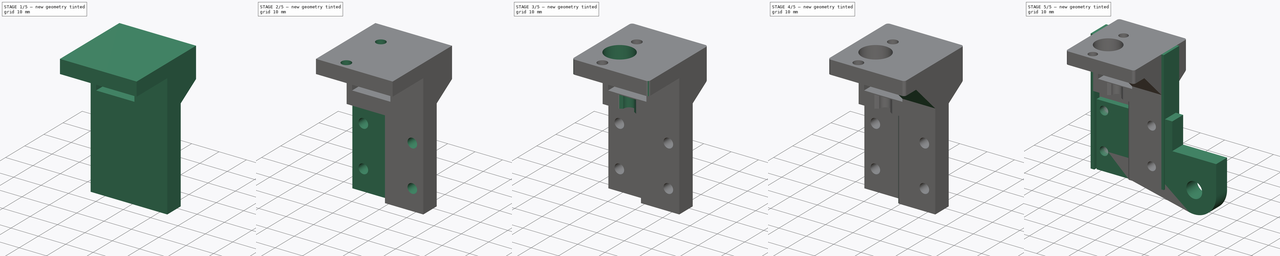
[diagram: build sequence overview — one tinted view per stage of 5, left to right]
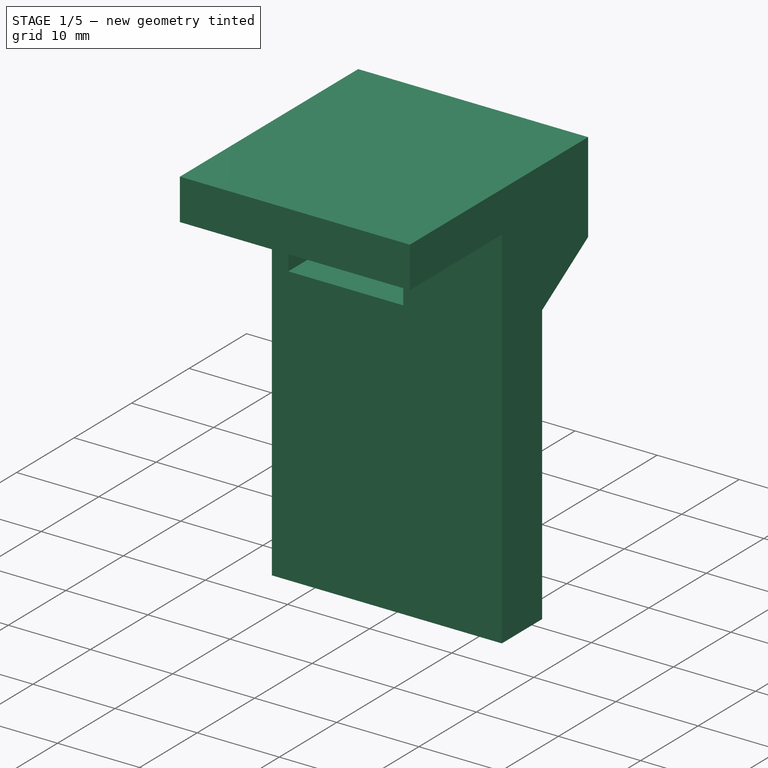
[diagram: stage 1 of 5 — iso view after this stage's code; geometry added in this stage tinted green]
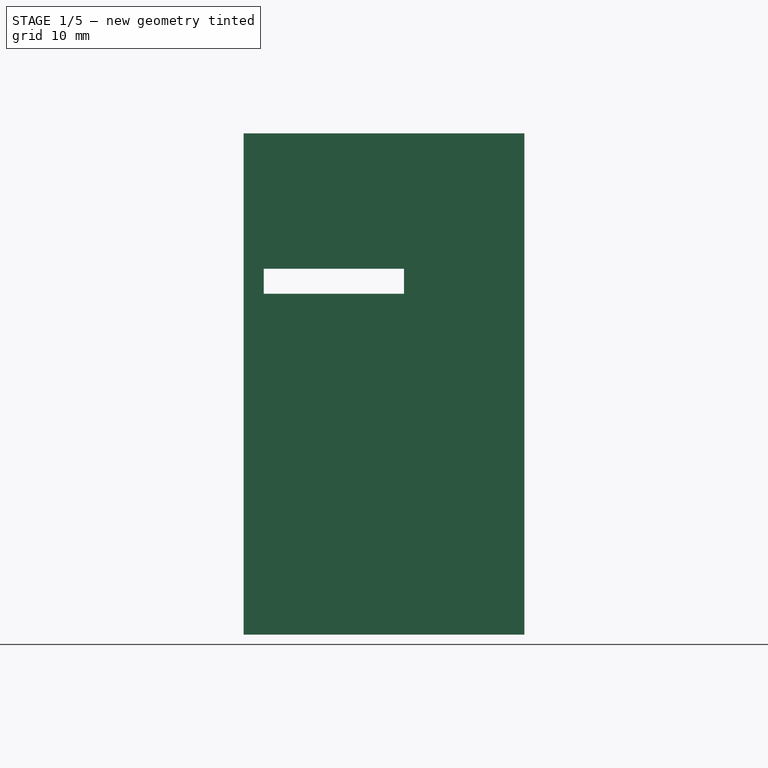
[diagram: stage 1 of 5 — front view after this stage's code; geometry added in this stage tinted green]
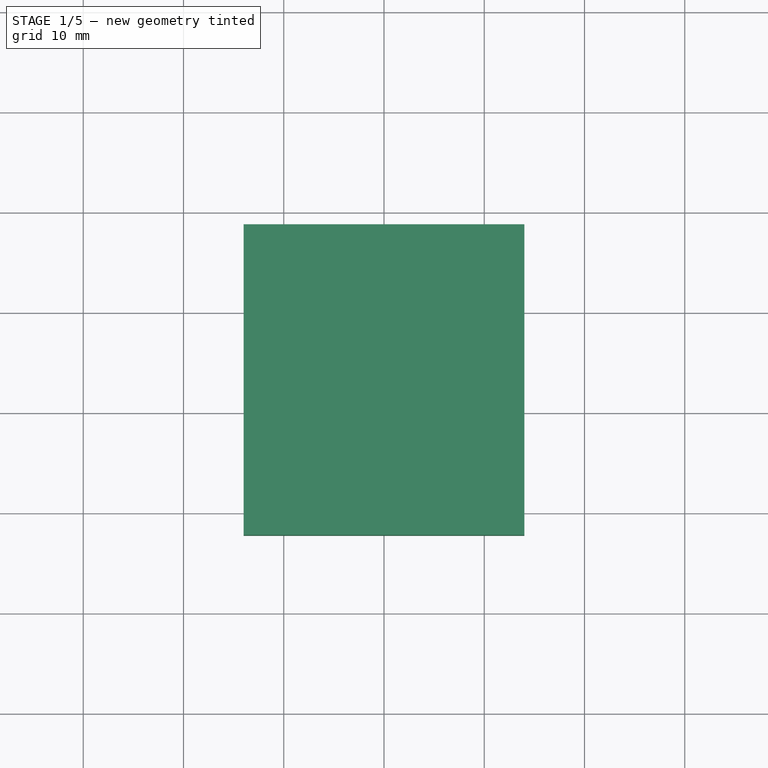
[diagram: stage 1 of 5 — top view after this stage's code; geometry added in this stage tinted green]
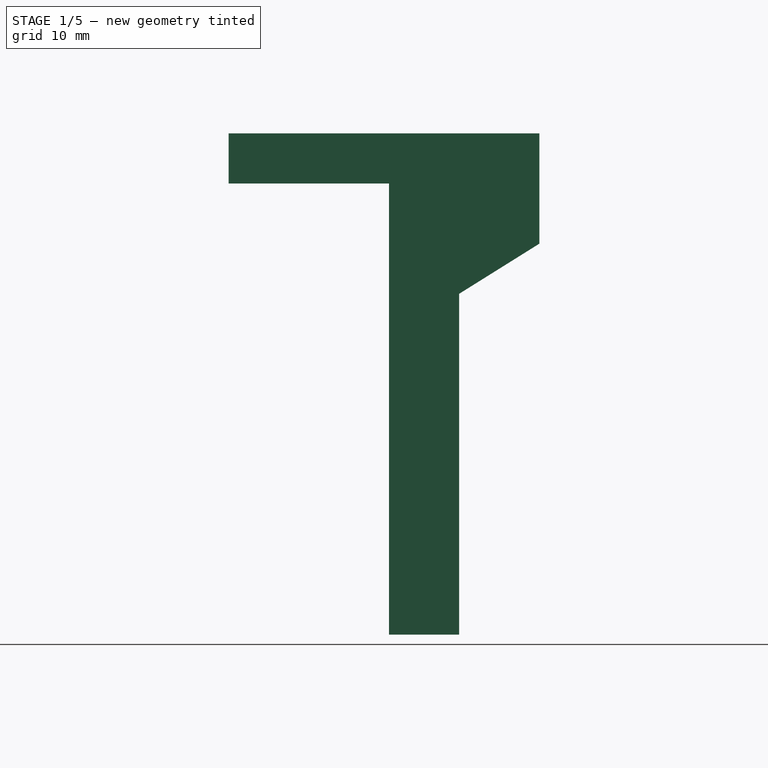
[diagram: stage 1 of 5 — right view after this stage's code; geometry added in this stage tinted green]
FCSTD DOCUMENT  (FreeCAD 0.19R)
Label: ZnutHolder_RC
License: All rights reserved
LicenseURL: http://en.wikipedia.org/wiki/All_rights_reserved
objects: Sketcher::SketchObject×12, PartDesign::Pocket×7, PartDesign::Pad×4, PartDesign::Fillet×3, PartDesign::Body×2, PartDesign::Chamfer×2
note: 46 computed .brp shape members not serialized (recipe doc carries the construction recipe); baked Part::Feature solids carry a one-line shape summary decoded from their .brp

FEATURE [PartDesign::Body] Body  label="Tab"
  Group = -> [Sketch,Pad]
  Origin = -> Origin
  Placement = pos=(0,6.35,0) rot=(0,0,1;0rad)
  Tip = -> Pad
FEATURE [Sketcher::SketchObject] Sketch003  label="ScrewHoles"
  FullyConstrained = true
  MapMode = 5
  Placement = pos=(0,3.3e-14,29) rot=(0,0,1;3.14159rad)
  sketch-geometry (2):
    g0: Circle CenterX=5 CenterY=21.5 CenterZ=0 NormalX=0 NormalY=0 NormalZ=1 AngleXU=0 Radius=1.75
    g1: Circle CenterX=5 CenterY=3.5 CenterZ=0 NormalX=0 NormalY=0 NormalZ=1 AngleXU=0 Radius=1.75
  constraints (6):
    c: Distance(g0,g1) = 18
    c: Diameter(g0) = 3.5
    c: Equal(g0,g1)
    c: DistanceX(g1) = 5
    c: DistanceX(g0) = 5
    c: DistanceY(g1) = 3.5
FEATURE [Sketcher::SketchObject] Sketch005  label="body"
  FullyConstrained = true
  MapMode = 5
  Placement = pos=(0,0,0) rot=(0.57735,0.57735,0.57735;2.0944rad)
  Support = -> [YZ_Plane001]
  sketch-geometry (8):
    g0: LineSegment StartX=0 StartY=-15 StartZ=0 EndX=0 EndY=19 EndZ=0
    g1: LineSegment StartX=0 StartY=19 StartZ=0 EndX=8 EndY=24 EndZ=0
    g2: LineSegment StartX=8 StartY=24 StartZ=0 EndX=8 EndY=35 EndZ=0
    g3: LineSegment StartX=8 StartY=35 StartZ=0 EndX=-23 EndY=35 EndZ=0
    g4: LineSegment StartX=-23 StartY=35 StartZ=0 EndX=-23 EndY=30 EndZ=0
    g5: LineSegment StartX=-23 StartY=30 StartZ=0 EndX=-7 EndY=30 EndZ=0
    g6: LineSegment StartX=-7 StartY=30 StartZ=0 EndX=-7 EndY=-15 EndZ=0
    g7: LineSegment StartX=-7 StartY=-15 StartZ=0 EndX=0 EndY=-15 EndZ=0
  constraints (24):
    c: PointOnObject(g0,g-2)
    c: PointOnObject(g0,g-2)
    c: Coincident(g0,g1)
    c: Coincident(g1,g2)
    c: Vertical(g2)
    c: Coincident(g2,g3)
    c: Horizontal(g3)
    c: Coincident(g3,g4)
    c: Vertical(g4)
    c: Coincident(g4,g5)
    c: Horizontal(g5)
    c: Coincident(g5,g6)
    c: Vertical(g6)
    c: Coincident(g6,g7)
    c: Coincident(g7,g0)
    c: Horizontal(g7)
    c: Distance(g4) = 5
    c: DistanceY(g2) = 35
    c: DistanceY(g0) = 19
    c: DistanceY(g1) = 24
    c: DistanceX(g4) = -23
    c: Distance(g7) = 7
    c: DistanceY(g0) = -15
    c: DistanceX(g2) = 8
FEATURE [PartDesign::Pad] Pad001
  Direction = (1,1,1)
  Length = 14
  Length2 = 14
  Placement = pos=(0,0,0) rot=(0.57735,0.57735,0.57735;2.0944rad)
  Profile = -> Sketch005
  Type = 4
FEATURE [PartDesign::Pocket] Pocket
  BaseFeature = -> Pad001
  Length = 6
  Length2 = 100
  Placement = pos=(0,0,0) rot=(0.57735,0.57735,0.57735;2.0944rad)
  Profile = -> Sketch003
  Type = 0
FEATURE [Sketcher::SketchObject] Sketch007  label="ScrewHoles_rail"
  FullyConstrained = true
  MapMode = 5
  Placement = pos=(-4e-15,-8,8e-15) rot=(-0.57735,-0.57735,0.57735;4.18879rad)
  sketch-geometry (8):
    g0: Circle CenterX=-7.5 CenterY=10 CenterZ=0 NormalX=0 NormalY=0 NormalZ=1 AngleXU=0 Radius=1.75
    g1: Circle CenterX=7.5 CenterY=10 CenterZ=0 NormalX=0 NormalY=0 NormalZ=1 AngleXU=0 Radius=1.75
    g2: Circle CenterX=-7.5 CenterY=-10 CenterZ=0 NormalX=0 NormalY=0 NormalZ=1 AngleXU=0 Radius=1.75
    g3: Circle CenterX=7.5 CenterY=-10 CenterZ=0 NormalX=0 NormalY=0 NormalZ=1 AngleXU=0 Radius=1.75
    g4: LineSegment StartX=-7.5 StartY=10 StartZ=0 EndX=-7.5 EndY=-10 EndZ=0
    g5: LineSegment StartX=-7.5 StartY=-10 StartZ=0 EndX=7.5 EndY=-10 EndZ=0
    g6: LineSegment StartX=7.5 StartY=-10 StartZ=0 EndX=7.5 EndY=10 EndZ=0
    g7: LineSegment StartX=7.5 StartY=10 StartZ=0 EndX=-7.5 EndY=10 EndZ=0
  constraints (18):
    c: Diameter(g0) = 3.5
    c: Equal(g0,g1)
    c: Equal(g0,g2)
    c: Equal(g0,g3)
    c: Coincident(g4,g0)
    c: Coincident(g4,g2)
    c: Coincident(g4,g5)
    c: Coincident(g5,g3)
    c: Coincident(g5,g6)
    c: Coincident(g6,g1)
    c: Coincident(g6,g7)
    c: Coincident(g7,g4)
    c: Symmetric(g3,g0,g-1)
    c: Symmetric(g1,g0,g-2)
    c: Equal(g4,g6)
    c: Equal(g7,g5)
    c: Distance(g7) = 15
    c: Distance(g6) = 20
FEATURE [Sketcher::SketchObject] Sketch008  label="ScrewRelief"
  FullyConstrained = false
  MapMode = 5
  Placement = pos=(2.5e-14,-1.6e-14,-18) rot=(0.707107,0.707107,0;3.14159rad)
  sketch-geometry (4):
    g0: LineSegment StartX=-11.0432 StartY=0 StartZ=0 EndX=-4 EndY=0 EndZ=0
    g1: LineSegment StartX=-4 StartY=0 StartZ=0 EndX=-4 EndY=-14 EndZ=0
    g2: LineSegment StartX=-4 StartY=-14 StartZ=0 EndX=-11.0432 EndY=-14 EndZ=0
    g3: LineSegment StartX=-11.0432 StartY=-14 StartZ=0 EndX=-11.0432 EndY=0 EndZ=0
  constraints (11):
    c: Coincident(g0,g1)
    c: Coincident(g1,g2)
    c: Coincident(g2,g3)
    c: Coincident(g3,g0)
    c: Horizontal(g0)
    c: Horizontal(g2)
    c: Vertical(g1)
    c: Vertical(g3)
    c: Distance(g1) = 14
    c: DistanceY(g0) = 0
    c: DistanceX(g1) = -4
FEATURE [Sketcher::SketchObject] Sketch010  label="NutClearance"
  FullyConstrained = true
  MapMode = 5
  Placement = pos=(-3.1e-15,-7,1.5e-15) rot=(-0.57735,-0.57735,0.57735;4.18879rad)
  Support = -> [Pocket]
  sketch-geometry (4):
    g0: LineSegment StartX=-30 StartY=2 StartZ=0 EndX=-19 EndY=2 EndZ=0
    g1: LineSegment StartX=-19 StartY=2 StartZ=0 EndX=-19 EndY=-12 EndZ=0
    g2: LineSegment StartX=-19 StartY=-12 StartZ=0 EndX=-30 EndY=-12 EndZ=0
    g3: LineSegment StartX=-30 StartY=-12 StartZ=0 EndX=-30 EndY=2 EndZ=0
  constraints (12):
    c: Coincident(g0,g1)
    c: Coincident(g1,g2)
    c: Coincident(g2,g3)
    c: Coincident(g3,g0)
    c: Horizontal(g0)
    c: Horizontal(g2)
    c: Vertical(g1)
    c: Vertical(g3)
    c: Distance(g1) = 14
    c: Distance(g0) = 11
    c: DistanceX(g0) = -30
    c: DistanceY(g1) = -12
FEATURE [PartDesign::Pocket] Pocket001
  BaseFeature = -> Pocket
  Length = 11
  Length2 = 100
  Placement = pos=(0,0,0) rot=(0.57735,0.57735,0.57735;2.0944rad)
  Profile = -> Sketch010
  Type = 0
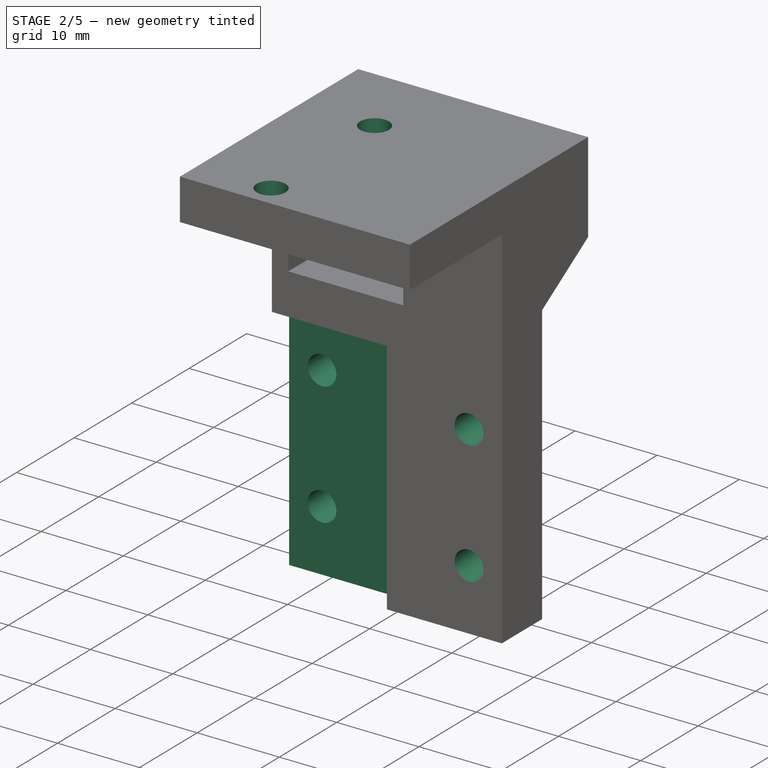
[diagram: stage 2 of 5 — iso view after this stage's code; geometry added in this stage tinted green]
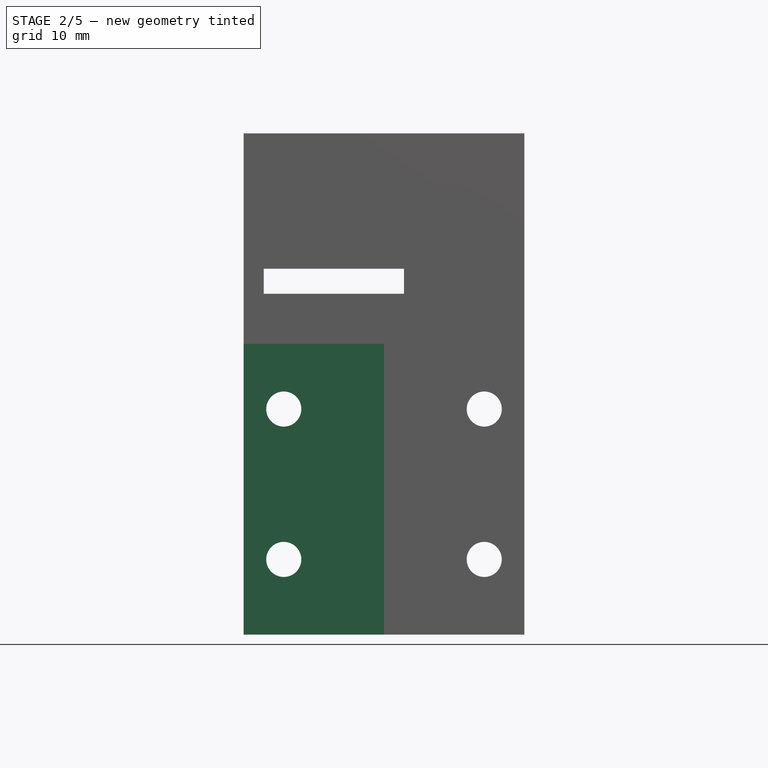
[diagram: stage 2 of 5 — front view after this stage's code; geometry added in this stage tinted green]
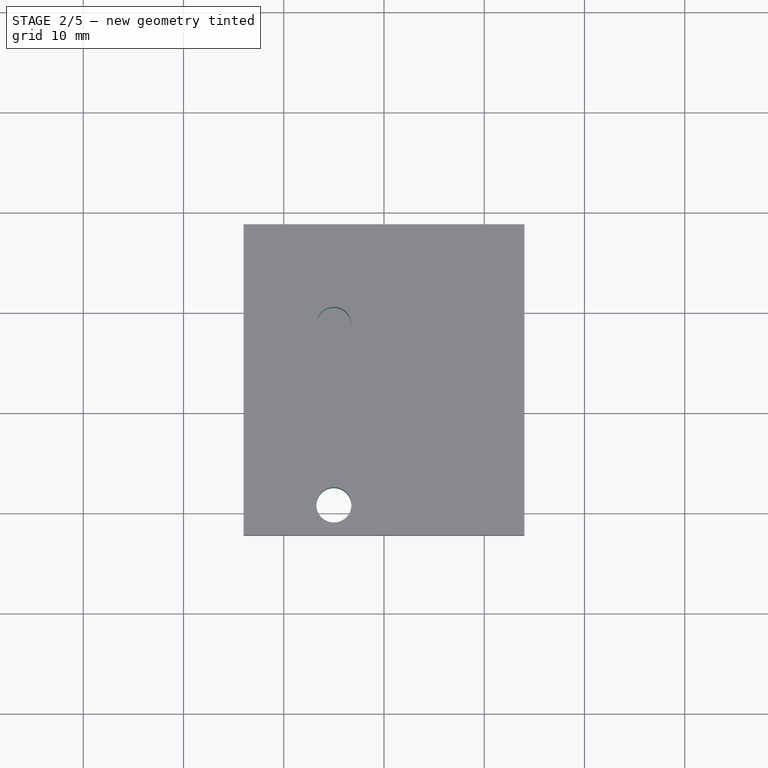
[diagram: stage 2 of 5 — top view after this stage's code; geometry added in this stage tinted green]
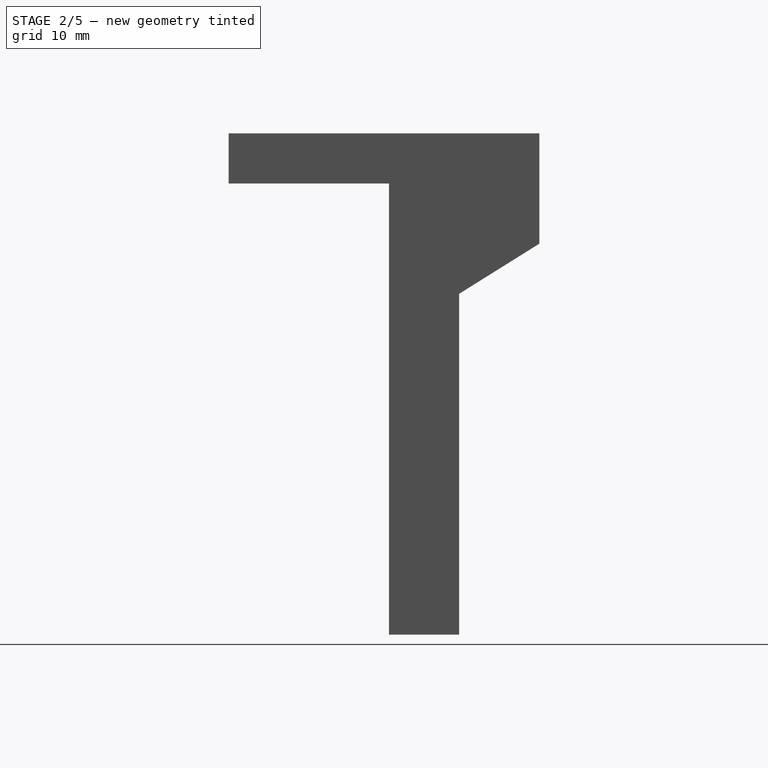
[diagram: stage 2 of 5 — right view after this stage's code; geometry added in this stage tinted green]
FEATURE [Sketcher::SketchObject] Sketch011  label="Carriage"
  FullyConstrained = false
  MapMode = 5
  Placement = pos=(0,0,0) rot=(1,0,0;1.5708rad)
  Support = -> [XZ_Plane001]
  sketch-geometry (4):
    g0: LineSegment StartX=-19.4447 StartY=17.5 StartZ=0 EndX=25.2288 EndY=17.5 EndZ=0
    g1: LineSegment StartX=25.2288 StartY=17.5 StartZ=0 EndX=25.2288 EndY=-17.5 EndZ=0
    g2: LineSegment StartX=25.2288 StartY=-17.5 StartZ=0 EndX=-19.4447 EndY=-17.5 EndZ=0
    g3: LineSegment StartX=-19.4447 StartY=-17.5 StartZ=0 EndX=-19.4447 EndY=17.5 EndZ=0
  constraints (10):
    c: Coincident(g0,g1)
    c: Coincident(g1,g2)
    c: Coincident(g2,g3)
    c: Coincident(g3,g0)
    c: Horizontal(g0)
    c: Horizontal(g2)
    c: Vertical(g1)
    c: Vertical(g3)
    c: DistanceY(g0) = 17.5
    c: Distance(g1) = 35
FEATURE [Sketcher::SketchObject] Sketch012  label="NutHole"
  FullyConstrained = true
  MapMode = 5
  Placement = pos=(-6e-14,3.5e-14,35) rot=(0,0,-1;1.5708rad)
  sketch-geometry (1):
    g0: Circle CenterX=11 CenterY=-5 CenterZ=0 NormalX=0 NormalY=0 NormalZ=1 AngleXU=0 Radius=5.15
  constraints (3):
    c: Diameter(g0) = 10.3
    c: DistanceY(g0) = -5
    c: DistanceX(g0) = 11
FEATURE [Sketcher::SketchObject] Sketch013  label="Nutscrews"
  FullyConstrained = true
  MapMode = 5
  Placement = pos=(-7.2e-14,3.9e-14,35) rot=(0,0,-1;1.5708rad)
  sketch-geometry (2):
    g0: Circle CenterX=2 CenterY=-5 CenterZ=0 NormalX=0 NormalY=0 NormalZ=1 AngleXU=0 Radius=1.75
    g1: Circle CenterX=20 CenterY=-5 CenterZ=0 NormalX=0 NormalY=0 NormalZ=1 AngleXU=0 Radius=1.75
  constraints (6):
    c: DistanceY(g1) = -5
    c: DistanceY(g0) = -5
    c: DistanceX(g1) = 20
    c: DistanceX(g0) = 2
    c: Diameter(g1) = 3.5
    c: Equal(g1,g0)
FEATURE [Sketcher::SketchObject] Sketch016
  FullyConstrained = false
  MapMode = 5
  Placement = pos=(-4.1e-14,2.2e-14,14) rot=(0.707107,0.707107,0;3.14159rad)
  sketch-geometry (4):
    g0: ArcOfCircle CenterX=-6.03605 CenterY=-4.99793 CenterZ=0 NormalX=0 NormalY=0 NormalZ=1 AngleXU=0 Radius=2 StartAngle=4.71239 EndAngle=7.85398
    g1: ArcOfCircle CenterX=-13.5351 CenterY=-4.99793 CenterZ=0 NormalX=0 NormalY=0 NormalZ=1 AngleXU=0 Radius=2 StartAngle=1.5708 EndAngle=4.71239
    g2: LineSegment StartX=-6.03605 StartY=-2.99793 StartZ=0 EndX=-13.5351 EndY=-2.99793 EndZ=0
    g3: LineSegment StartX=-6.03605 StartY=-6.99793 StartZ=0 EndX=-13.5351 EndY=-6.99793 EndZ=0
  constraints (7):
    c: Tangent(g0,g3) = 1.5708
    c: Tangent(g0,g2) = -1.5708
    c: Tangent(g2,g1) = -1.5708
    c: Tangent(g3,g1) = 1.5708
    c: Horizontal(g2)
    c: Equal(g0,g1)
    c: Distance(g1,g1) = 4
FEATURE [PartDesign::Pocket] Pocket002
  BaseFeature = -> Pocket001
  Length = 5
  Length2 = 100
  Placement = pos=(0,0,0) rot=(0.57735,0.57735,0.57735;2.0944rad)
  Profile = -> Sketch007
  Type = 1
FEATURE [PartDesign::Pocket] Pocket003
  BaseFeature = -> Pocket002
  Length = 32
  Length2 = 100
  Placement = pos=(0,0,0) rot=(0.57735,0.57735,0.57735;2.0944rad)
  Profile = -> Sketch008
  Type = 0
FEATURE [PartDesign::Pocket] Pocket004
  BaseFeature = -> Pocket003
  Length = 5
  Length2 = 100
  Placement = pos=(0,0,0) rot=(0.57735,0.57735,0.57735;2.0944rad)
  Profile = -> Sketch013
  Type = 0
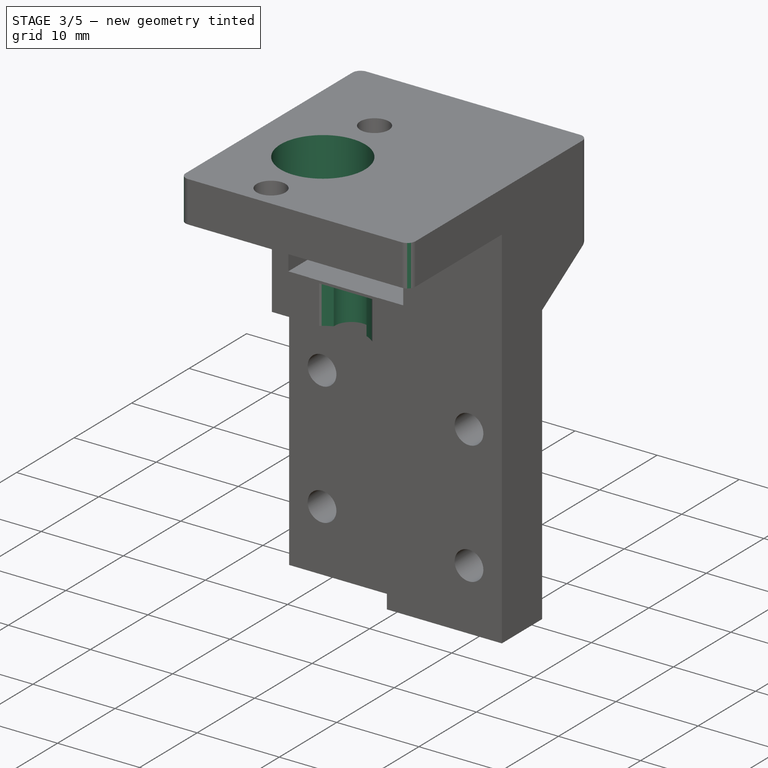
[diagram: stage 3 of 5 — iso view after this stage's code; geometry added in this stage tinted green]
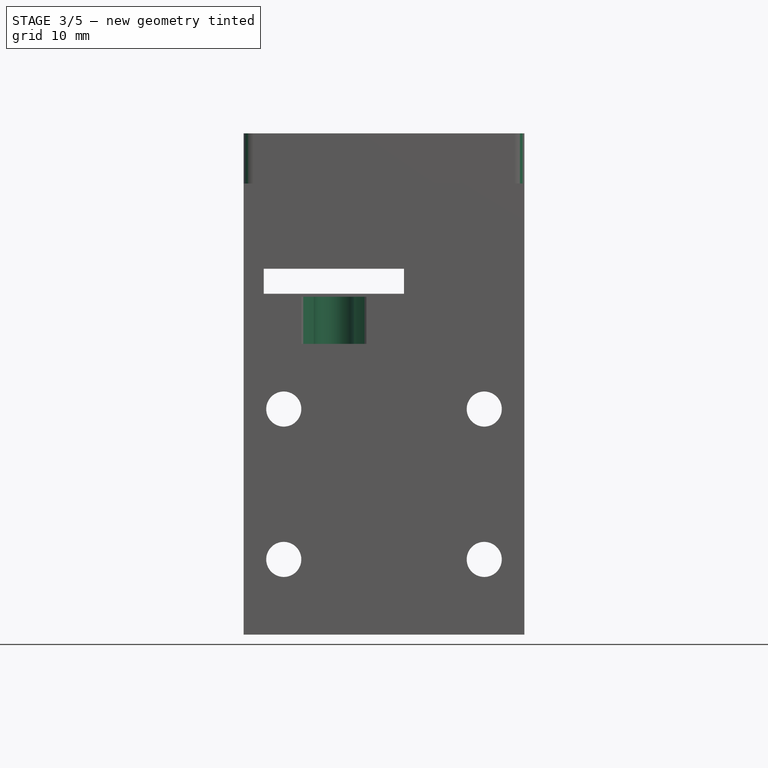
[diagram: stage 3 of 5 — front view after this stage's code; geometry added in this stage tinted green]
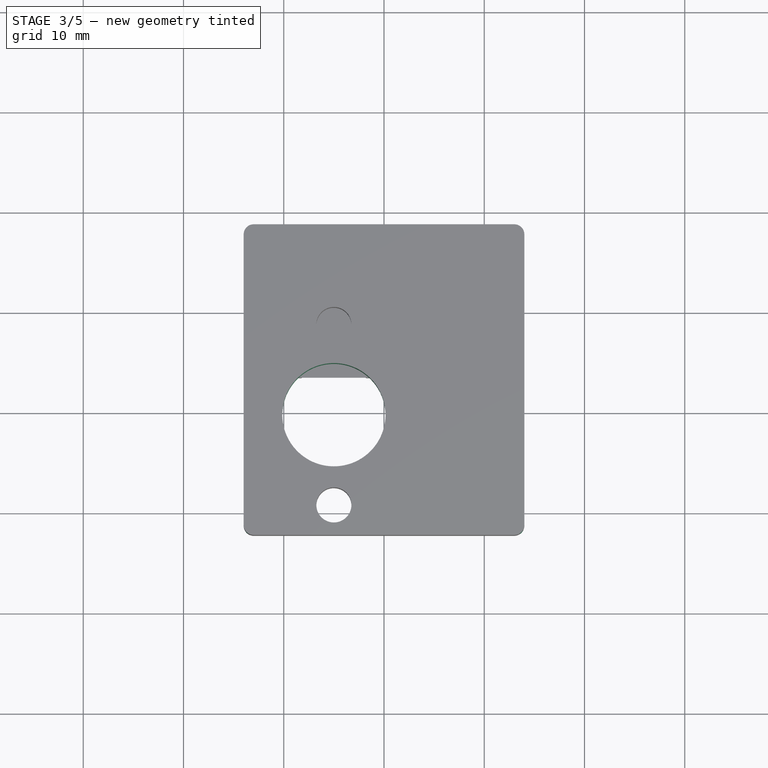
[diagram: stage 3 of 5 — top view after this stage's code; geometry added in this stage tinted green]
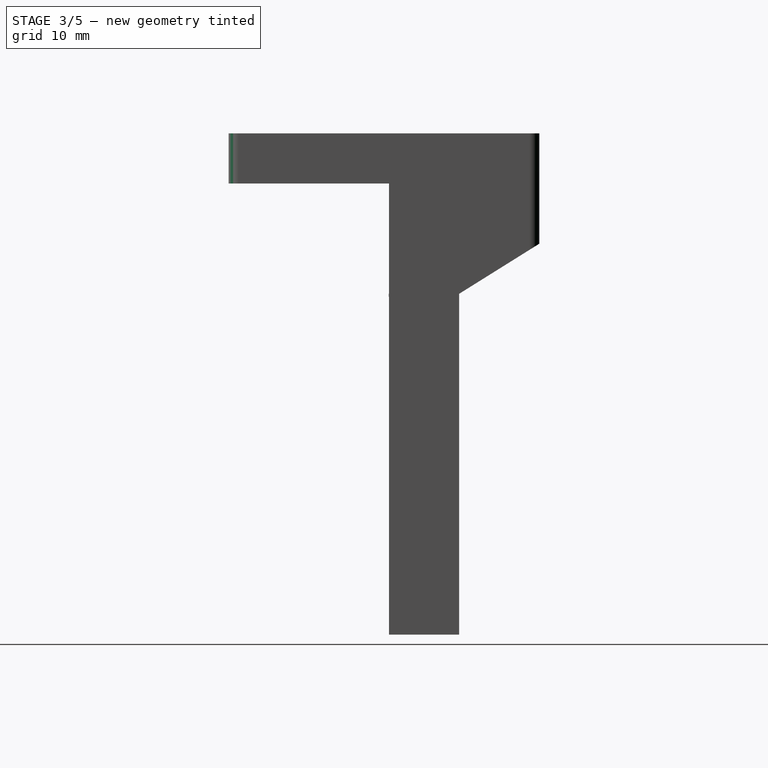
[diagram: stage 3 of 5 — right view after this stage's code; geometry added in this stage tinted green]
FEATURE [PartDesign::Pocket] Pocket005
  BaseFeature = -> Pocket004
  Length = 5
  Length2 = 100
  Placement = pos=(0,0,0) rot=(0.57735,0.57735,0.57735;2.0944rad)
  Profile = -> Sketch012
  Type = 1
FEATURE [Sketcher::SketchObject] Sketch017
  FullyConstrained = false
  MapMode = 5
  Placement = pos=(4.2e-15,1.27e-14,19) rot=(0,0,-1;1.5708rad)
  Support = -> [Pocket005]
  sketch-geometry (4):
    g0: LineSegment StartX=3.14052 StartY=-1.07395 StartZ=0 EndX=7.03072 EndY=-1.07395 EndZ=0
    g1: LineSegment StartX=7.03072 StartY=-1.07395 StartZ=0 EndX=7.03072 EndY=-9.54155 EndZ=0
    g2: LineSegment StartX=7.03072 StartY=-9.54155 StartZ=0 EndX=3.14052 EndY=-9.54155 EndZ=0
    g3: LineSegment StartX=3.14052 StartY=-9.54155 StartZ=0 EndX=3.14052 EndY=-1.07395 EndZ=0
  constraints (8):
    c: Coincident(g0,g1)
    c: Coincident(g1,g2)
    c: Coincident(g2,g3)
    c: Coincident(g3,g0)
    c: Horizontal(g0)
    c: Horizontal(g2)
    c: Vertical(g1)
    c: Vertical(g3)
FEATURE [PartDesign::Pocket] Pocket006
  BaseFeature = -> Pocket005
  Length = 5
  Length2 = 100
  Placement = pos=(0,0,0) rot=(0.57735,0.57735,0.57735;2.0944rad)
  Profile = -> Sketch016
  Type = 0
FEATURE [PartDesign::Pad] Pad002
  BaseFeature = -> Pocket006
  Direction = (1,1,1)
  Length = 0.3
  Length2 = 100
  Placement = pos=(0,0,0) rot=(0.57735,0.57735,0.57735;2.0944rad)
  Profile = -> Sketch017
  Reversed = true
  Type = 0
FEATURE [PartDesign::Fillet] Fillet
  Base = -> Pad002 [Edge20,Edge27,Edge25,Edge22]
  BaseFeature = -> Pad002
  Placement = pos=(0,0,0) rot=(0.57735,0.57735,0.57735;2.0944rad)
  Radius = 1
  SupportTransform = false
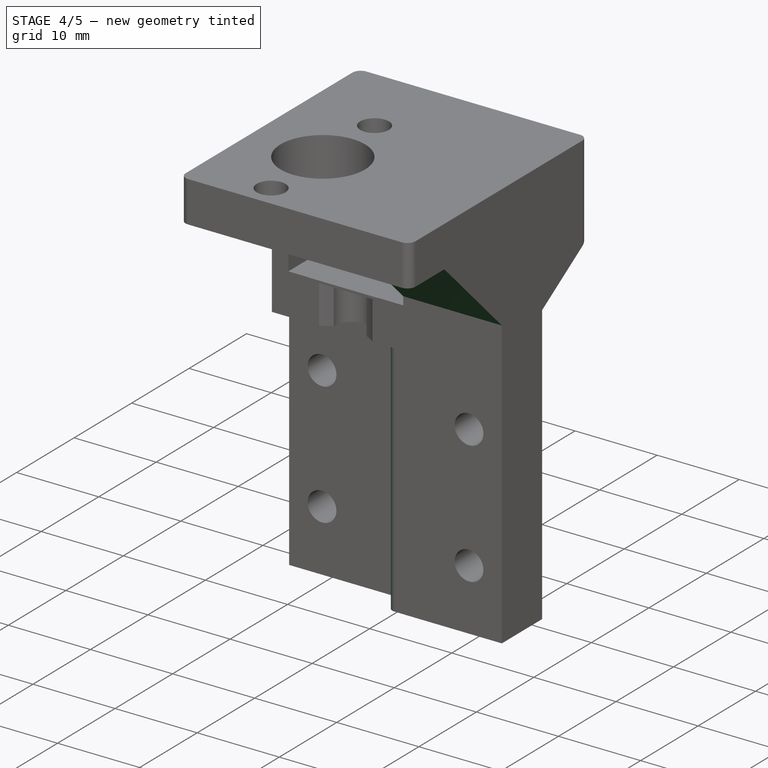
[diagram: stage 4 of 5 — iso view after this stage's code; geometry added in this stage tinted green]
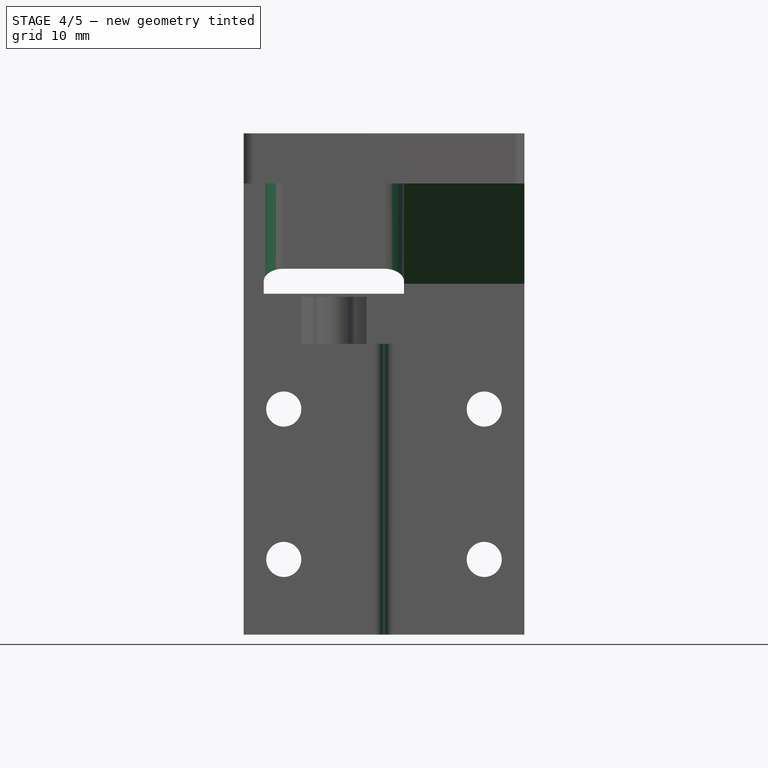
[diagram: stage 4 of 5 — front view after this stage's code; geometry added in this stage tinted green]
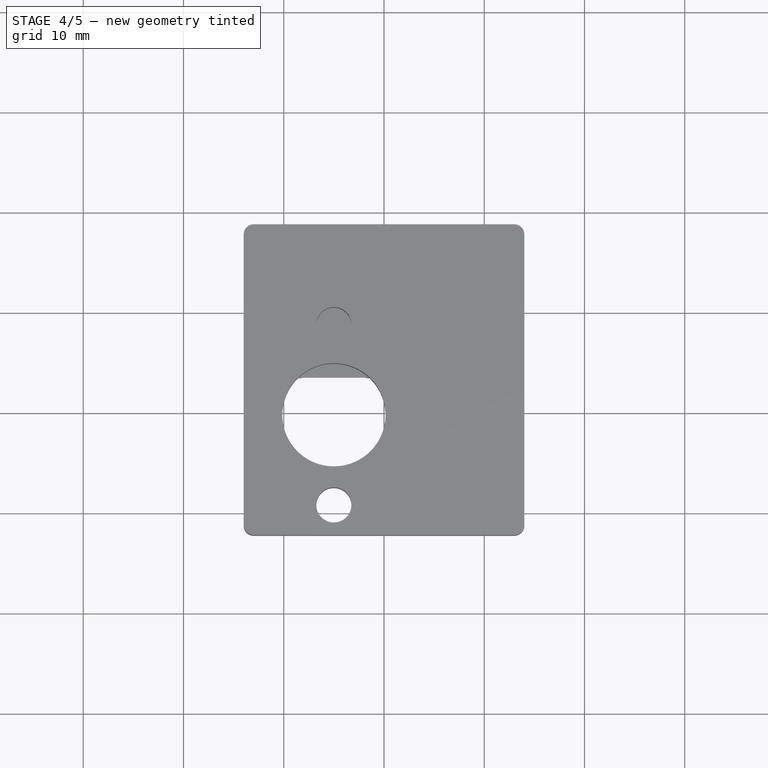
[diagram: stage 4 of 5 — top view after this stage's code; geometry added in this stage tinted green]
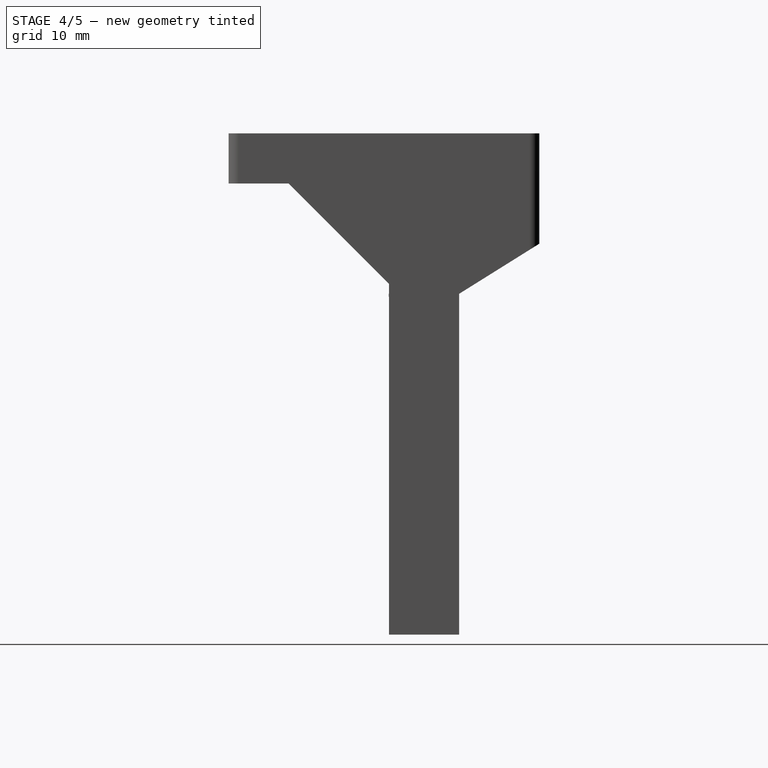
[diagram: stage 4 of 5 — right view after this stage's code; geometry added in this stage tinted green]
FEATURE [PartDesign::Fillet] Fillet001
  Base = -> Fillet [Edge114,Edge106]
  BaseFeature = -> Fillet
  Placement = pos=(0,0,0) rot=(0.57735,0.57735,0.57735;2.0944rad)
  Radius = 2
  SupportTransform = false
FEATURE [PartDesign::Fillet] Fillet002
  Base = -> Fillet001 [Edge101,Edge100]
  BaseFeature = -> Fillet001
  Placement = pos=(0,0,0) rot=(0.57735,0.57735,0.57735;2.0944rad)
  Radius = 1
  SupportTransform = false
FEATURE [PartDesign::Chamfer] Chamfer
  Angle = 45
  Base = -> Fillet002 [Edge22]
  BaseFeature = -> Fillet002
  ChamferType = 0
  FlipDirection = false
  Placement = pos=(0,0,0) rot=(0.57735,0.57735,0.57735;2.0944rad)
  Size = 10
  Size2 = 1
  SupportTransform = false
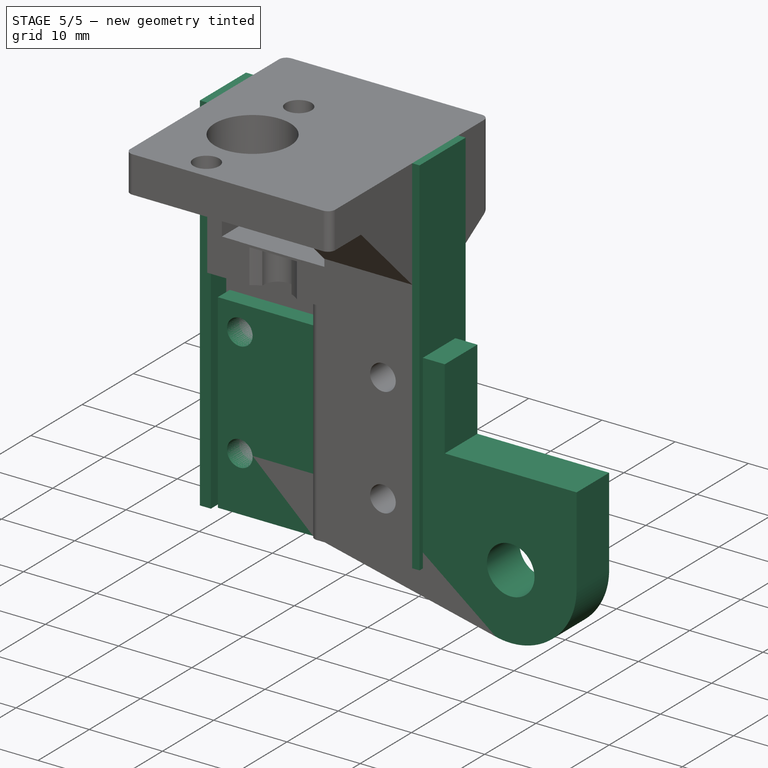
[diagram: stage 5 of 5 — iso view after this stage's code; geometry added in this stage tinted green]
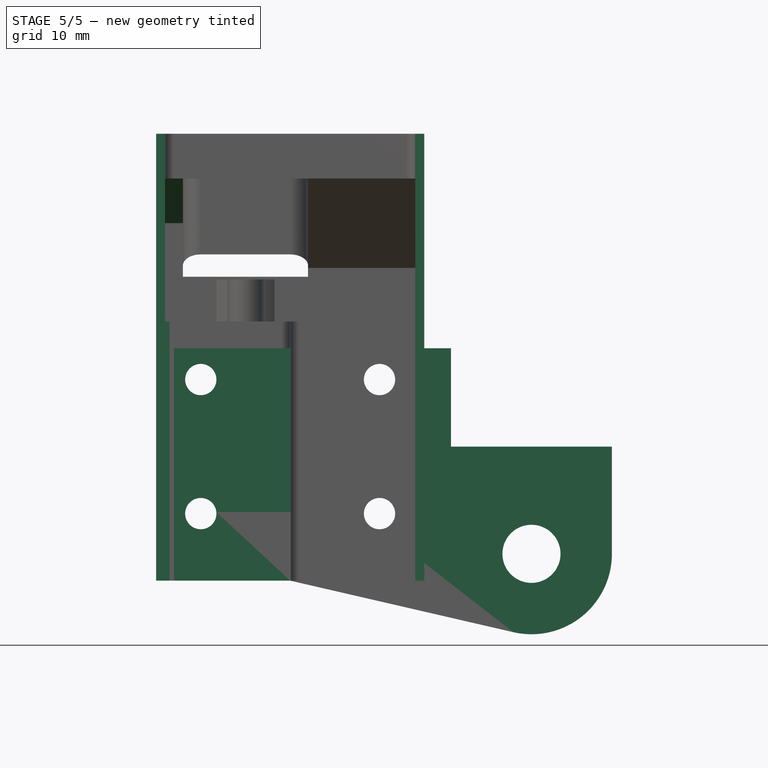
[diagram: stage 5 of 5 — front view after this stage's code; geometry added in this stage tinted green]
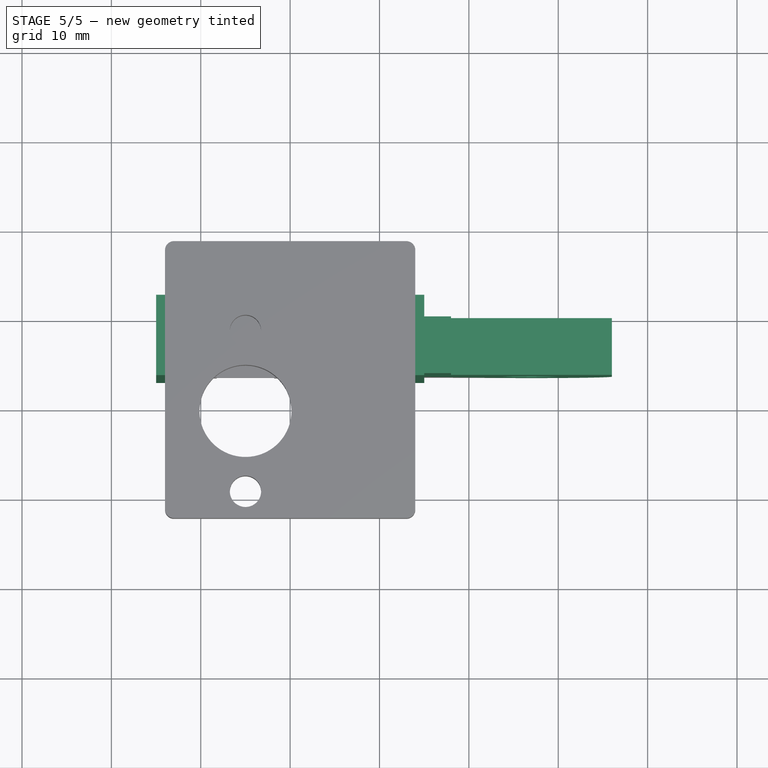
[diagram: stage 5 of 5 — top view after this stage's code; geometry added in this stage tinted green]
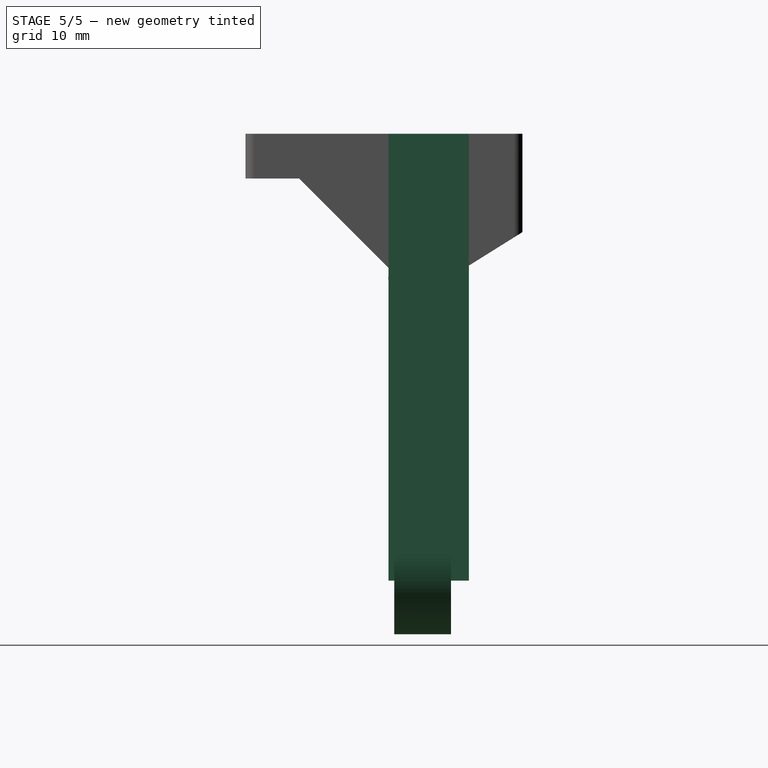
[diagram: stage 5 of 5 — right view after this stage's code; geometry added in this stage tinted green]
FEATURE [Sketcher::SketchObject] Sketch
  FullyConstrained = false
  MapMode = 5
  Placement = pos=(0,0,0) rot=(1,0,0;1.5708rad)
  Support = -> [XZ_Plane]
  sketch-geometry (14):
    g0: Circle CenterX=-10 CenterY=7.5 CenterZ=0 NormalX=0 NormalY=0 NormalZ=1 AngleXU=0 Radius=1.75
    g1: Circle CenterX=10 CenterY=7.5 CenterZ=0 NormalX=0 NormalY=0 NormalZ=1 AngleXU=0 Radius=1.75
    g2: Circle CenterX=-10 CenterY=-7.5 CenterZ=0 NormalX=0 NormalY=0 NormalZ=1 AngleXU=0 Radius=1.75
    g3: Circle CenterX=10 CenterY=-7.5 CenterZ=0 NormalX=0 NormalY=0 NormalZ=1 AngleXU=0 Radius=1.75
    g4: LineSegment StartX=-13 StartY=11 StartZ=0 EndX=18 EndY=11 EndZ=0
    g5: LineSegment StartX=18 StartY=11 StartZ=0 EndX=18 EndY=0 EndZ=0
    g6: LineSegment StartX=18 StartY=0 StartZ=0 EndX=36 EndY=0 EndZ=0
    g7: LineSegment StartX=36 StartY=0 StartZ=0 EndX=36 EndY=-12 EndZ=0
    g8: LineSegment StartX=-13 StartY=-15 StartZ=0 EndX=-13 EndY=11 EndZ=0
    g9: LineSegment StartX=-13 StartY=-15 StartZ=0 EndX=0 EndY=-15 EndZ=0
    g10: LineSegment StartX=0 StartY=-15 StartZ=0 EndX=24.9743 EndY=-20.7691 EndZ=0
    g11: ArcOfCircle CenterX=27 CenterY=-12 CenterZ=0 NormalX=0 NormalY=0 NormalZ=1 AngleXU=0 Radius=9 StartAngle=4.48537 EndAngle=6.28319
    g12: Circle CenterX=27 CenterY=-12 CenterZ=0 NormalX=0 NormalY=0 NormalZ=1 AngleXU=0 Radius=3.25
    g13: LineSegment StartX=19 StartY=18.0628 StartZ=0 EndX=19 EndY=-24.6673 EndZ=0
  constraints (37):
    c: Symmetric(g0,g1,g-2)
    c: Symmetric(g3,g2,g-2)
    c: Symmetric(g3,g1,g-1)
    c: Diameter(g0) = 3.5
    c: Equal(g0,g1)
    c: Equal(g0,g2)
    c: Equal(g0,g3)
    c: Distance(g1,g0) = 20
    c: Distance(g3,g1) = 15
    c: Horizontal(g4)
    c: Coincident(g4,g5)
    c: Vertical(g5)
    c: Coincident(g5,g6)
    c: Horizontal(g6)
    c: Coincident(g6,g7)
    c: Vertical(g7)
    c: Vertical(g8)
    c: DistanceX(g4) = 18
    c: DistanceX(g4) = -13
    c: Coincident(g8,g9)
    c: PointOnObject(g9,g-2)
    c: Horizontal(g9)
    c: Coincident(g9,g10)
    c: Tangent(g7,g11) = 1.5708
    c: Coincident(g11,g7)
    c: Tangent(g11,g10) = -1.5708
    c: Coincident(g12,g11)
    c: Diameter(g12) = 6.5
    c: Diameter(g11) = 18
    c: Vertical(g13)
    c: DistanceX(g13) = 19
    c: Distance(g11,g13) = 8
    c: Distance(g11,g6) = 12
    c: PointOnObject(g5,g-1)
    c: Coincident(g8,g4)
    c: DistanceY(g4) = 11
    c: DistanceY(g8) = -15
FEATURE [PartDesign::Pad] Pad
  Direction = (1,1,1)
  Length = 6.35
  Length2 = 100
  Placement = pos=(0,0,0) rot=(1,0,0;1.5708rad)
  Profile = -> Sketch
  Type = 0
FEATURE [PartDesign::Chamfer] Chamfer001
  Angle = 45
  Base = -> Chamfer [Edge76]
  BaseFeature = -> Chamfer
  ChamferType = 0
  FlipDirection = false
  Placement = pos=(0,0,0) rot=(0.57735,0.57735,0.57735;2.0944rad)
  Size = 5
  Size2 = 1
  SupportTransform = false
FEATURE [Sketcher::SketchObject] Sketch018
  FullyConstrained = true
  MapMode = 5
  Placement = pos=(4.2e-15,-6.6e-15,-15) rot=(0.707107,0.707107,0;3.14159rad)
  Support = -> [Chamfer001]
  sketch-geometry (8):
    g0: LineSegment StartX=-7 StartY=15 StartZ=0 EndX=2 EndY=15 EndZ=0
    g1: LineSegment StartX=2 StartY=15 StartZ=0 EndX=2 EndY=13.5 EndZ=0
    g2: LineSegment StartX=2 StartY=13.5 StartZ=0 EndX=-7 EndY=13.5 EndZ=0
    g3: LineSegment StartX=-7 StartY=13.5 StartZ=0 EndX=-7 EndY=15 EndZ=0
    g4: LineSegment StartX=-7 StartY=-13.5 StartZ=0 EndX=2 EndY=-13.5 EndZ=0
    g5: LineSegment StartX=2 StartY=-13.5 StartZ=0 EndX=2 EndY=-15 EndZ=0
    g6: LineSegment StartX=2 StartY=-15 StartZ=0 EndX=-7 EndY=-15 EndZ=0
    g7: LineSegment StartX=-7 StartY=-15 StartZ=0 EndX=-7 EndY=-13.5 EndZ=0
  constraints (23):
    c: Coincident(g0,g1)
    c: Coincident(g1,g2)
    c: Coincident(g2,g3)
    c: Coincident(g3,g0)
    c: Horizontal(g0)
    c: Horizontal(g2)
    c: Vertical(g1)
    c: Vertical(g3)
    c: Coincident(g4,g5)
    c: Coincident(g5,g6)
    c: Coincident(g6,g7)
    c: Coincident(g7,g4)
    c: Horizontal(g4)
    c: Horizontal(g6)
    c: Vertical(g5)
    c: Vertical(g7)
    c: DistanceX(g4) = 2
    c: Symmetric(g4,g1,g-1)
    c: Distance(g1,g4) = 27
    c: Distance(g1) = 1.5
    c: Equal(g5,g1)
    c: DistanceX(g0) = -7
    c: DistanceX(g6) = -7
FEATURE [PartDesign::Pad] Pad003
  BaseFeature = -> Chamfer001
  Direction = (1,1,1)
  Length = 50
  Length2 = 100
  Placement = pos=(0,0,0) rot=(0.57735,0.57735,0.57735;2.0944rad)
  Profile = -> Sketch018
  Reversed = true
  Type = 0
FEATURE [PartDesign::Body] Body001  label="LeadScrewMount"
  Group = -> [Sketch003,Sketch005,Pad001,Pocket,Sketch007,Sketch008,Sketch010,Pocket001,Sketch011,Sketch012,Sketch013,Sketch016,Pocket002,Pocket003,Pocket004,Pocket005,Sketch017,Pocket006,Pad002,Fillet,Fillet001,Fillet002,Chamfer,Chamfer001,Sketch018,Pad003]
  Origin = -> Origin001
  Tip = -> Pad003
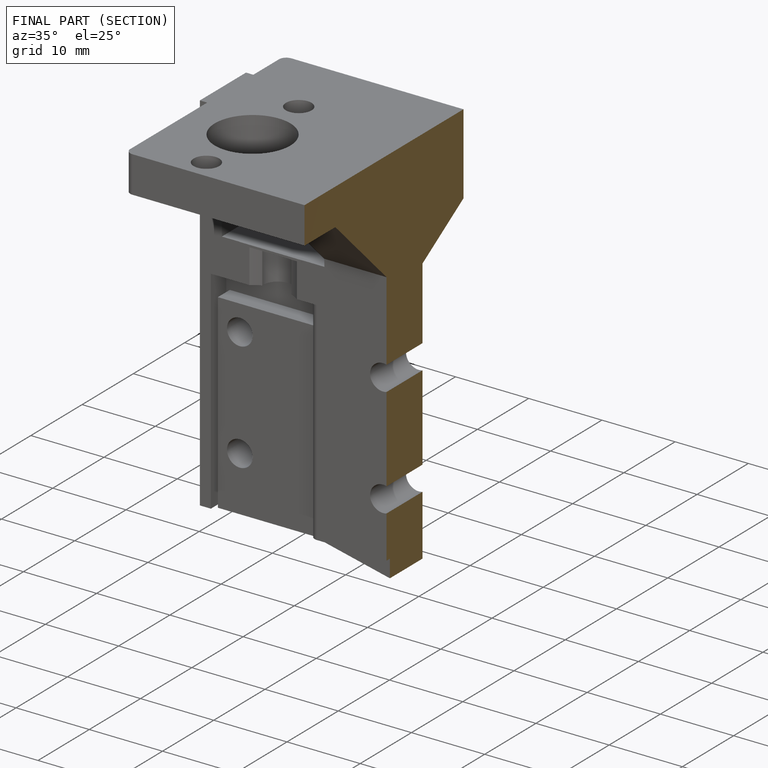
[diagram: finished part — half-section view (interior)]
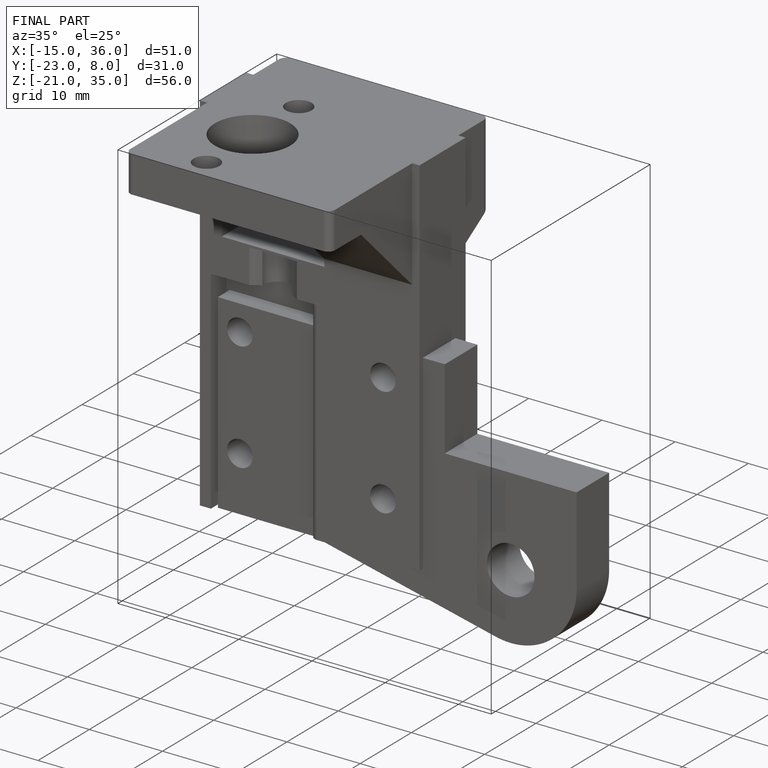
[diagram: finished part — iso view with bounding-box wireframe]
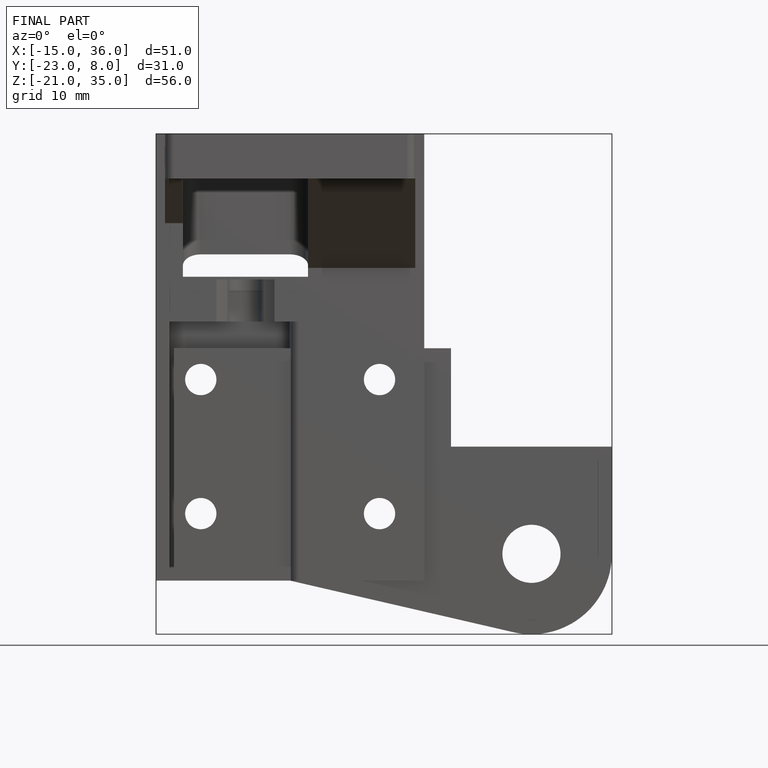
[diagram: finished part — front view with bounding-box wireframe]
